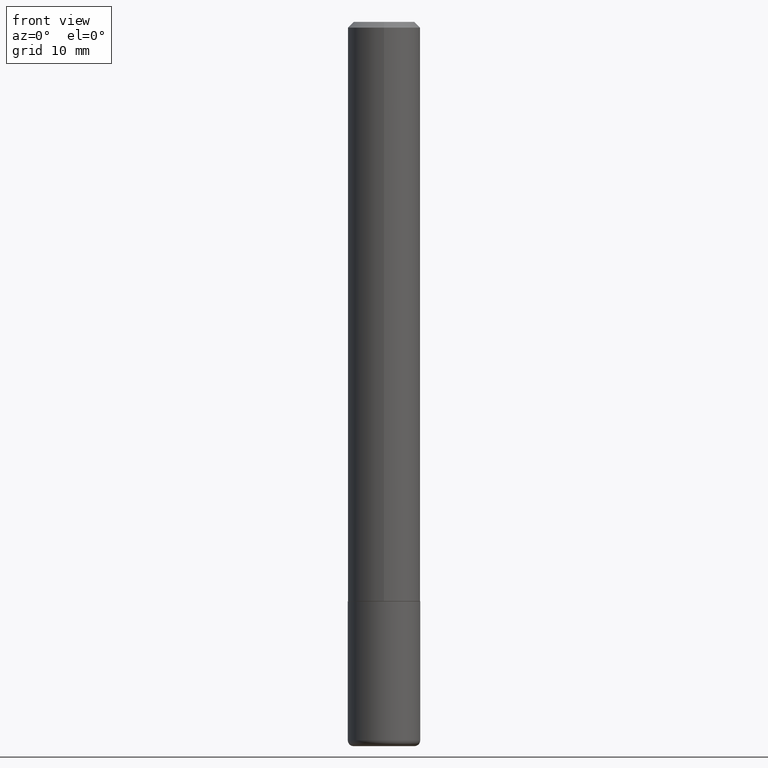
[diagram: clean part render]
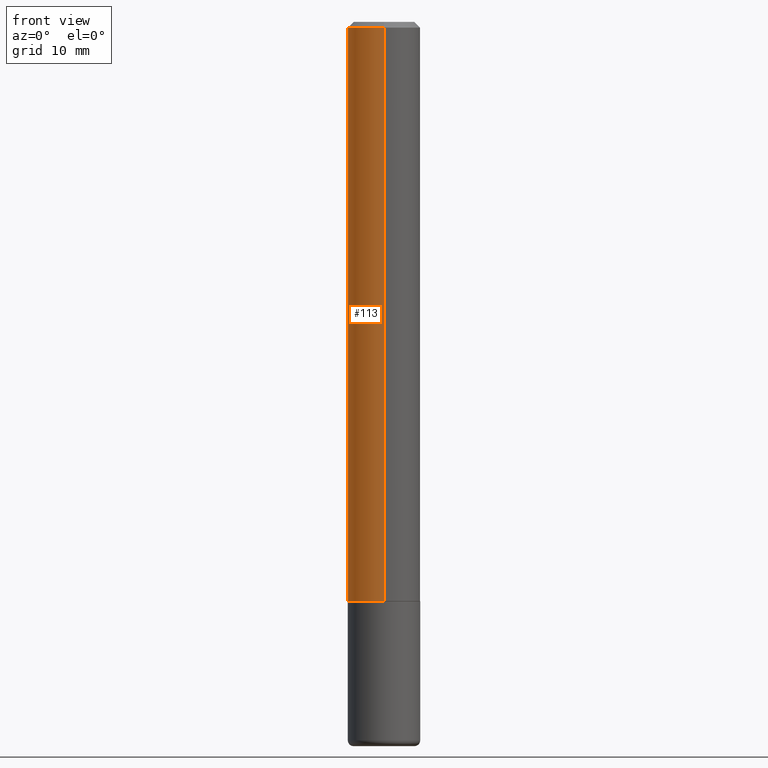
[diagram: same view with one face highlighted and labeled with its STEP entity id]
A machine part, front view. The second image highlights one B-rep face of the part: STEP entity #113.
In plain terms, the highlighted cylindrical surface (edge-blend (fillet) strip) has radius 3.175 mm, axis along (-0, 0, 1).
Its self-contained STEP definition (entity closure, byte-faithful):
#12 = CARTESIAN_POINT ( 'NONE',  ( -8.575622497214411495E-16, -0.1250000000000001110, -0.01999999999999963612 ) ) ;
#37 = FACE_OUTER_BOUND ( 'NONE', #86, .T. ) ;
#42 = VERTEX_POINT ( 'NONE', #385 ) ;
#51 = EDGE_CURVE ( 'NONE', #42, #316, #218, .T. ) ;
#58 = CARTESIAN_POINT ( 'NONE',  ( 8.881784197001510675E-16, 0.1249999999999932554, -1.999000000000000554 ) ) ;
#60 = CIRCLE ( 'NONE', #109, 0.1250000000000000278 ) ;
#61 = VERTEX_POINT ( 'NONE', #95 ) ;
#67 = DIRECTION ( 'NONE',  ( -2.433760210306857467E-29, 3.508248714552732429E-15, 1.000000000000000000 ) ) ;
#86 = EDGE_LOOP ( 'NONE', ( #202, #135, #318, #398 ) ) ;
#95 = CARTESIAN_POINT ( 'NONE',  ( 8.728703347107839305E-16, 0.1249999999999999584, -0.02000000000000051736 ) ) ;
#109 = AXIS2_PLACEMENT_3D ( 'NONE', #352, #157, #184 ) ;
#113 = ADVANCED_FACE ( 'NONE', ( #37 ), #225, .T. ) ;
#135 = ORIENTED_EDGE ( 'NONE', *, *, #217, .T. ) ;
#144 = CIRCLE ( 'NONE', #415, 0.1250000000000002776 ) ;
#157 = DIRECTION ( 'NONE',  ( -2.433760210306857467E-29, 3.508248714552732824E-15, 1.000000000000000000 ) ) ;
#162 = DIRECTION ( 'NONE',  ( -2.433760210306857467E-29, 3.508248714552732824E-15, 1.000000000000000000 ) ) ;
#163 = AXIS2_PLACEMENT_3D ( 'NONE', #223, #162, #356 ) ;
#183 = CARTESIAN_POINT ( 'NONE',  ( -8.728703347107843249E-16, -0.1250000000000001388, 4.385310893190921453E-16 ) ) ;
#184 = DIRECTION ( 'NONE',  ( -6.982962677686265922E-15, -1.000000000000000000, 3.517254291842738179E-15 ) ) ;
#202 = ORIENTED_EDGE ( 'NONE', *, *, #357, .F. ) ;
#203 = DIRECTION ( 'NONE',  ( -2.433760210306857467E-29, 3.508248714552732824E-15, 1.000000000000000000 ) ) ;
#217 = EDGE_CURVE ( 'NONE', #370, #42, #144, .T. ) ;
#218 = LINE ( 'NONE', #183, #406 ) ;
#223 = CARTESIAN_POINT ( 'NONE',  ( 0.000000000000000000, 0.000000000000000000, 0.000000000000000000 ) ) ;
#225 = CYLINDRICAL_SURFACE ( 'NONE', #163, 0.1250000000000001388 ) ;
#252 = LINE ( 'NONE', #342, #354 ) ;
#316 = VERTEX_POINT ( 'NONE', #12 ) ;
#318 = ORIENTED_EDGE ( 'NONE', *, *, #51, .T. ) ;
#339 = DIRECTION ( 'NONE',  ( -6.982962677686265922E-15, -1.000000000000000000, 4.370956789862811683E-15 ) ) ;
#342 = CARTESIAN_POINT ( 'NONE',  ( 8.881784197001262184E-16, 0.1250000000000001388, -4.385310893190921453E-16 ) ) ;
#346 = EDGE_CURVE ( 'NONE', #61, #316, #60, .T. ) ;
#352 = CARTESIAN_POINT ( 'NONE',  ( 4.867520420613734727E-31, -7.016497429105492666E-17, -0.02000000000000007674 ) ) ;
#354 = VECTOR ( 'NONE', #67, 39.37007874015748143 ) ;
#356 = DIRECTION ( 'NONE',  ( -6.982962677686266711E-15, -1.000000000000000000, 3.508248714552733218E-15 ) ) ;
#357 = EDGE_CURVE ( 'NONE', #370, #61, #252, .T. ) ;
#370 = VERTEX_POINT ( 'NONE', #58 ) ;
#372 = CARTESIAN_POINT ( 'NONE',  ( 4.865086660403408100E-29, -7.012989180390911878E-15, -1.998999999999999888 ) ) ;
#385 = CARTESIAN_POINT ( 'NONE',  ( -8.728703347107365002E-16, -0.1250000000000072997, -1.998999999999999444 ) ) ;
#398 = ORIENTED_EDGE ( 'NONE', *, *, #346, .F. ) ;
#406 = VECTOR ( 'NONE', #410, 39.37007874015748143 ) ;
#410 = DIRECTION ( 'NONE',  ( -2.433760210306857467E-29, 3.508248714552732429E-15, 1.000000000000000000 ) ) ;
#415 = AXIS2_PLACEMENT_3D ( 'NONE', #372, #203, #339 ) ;